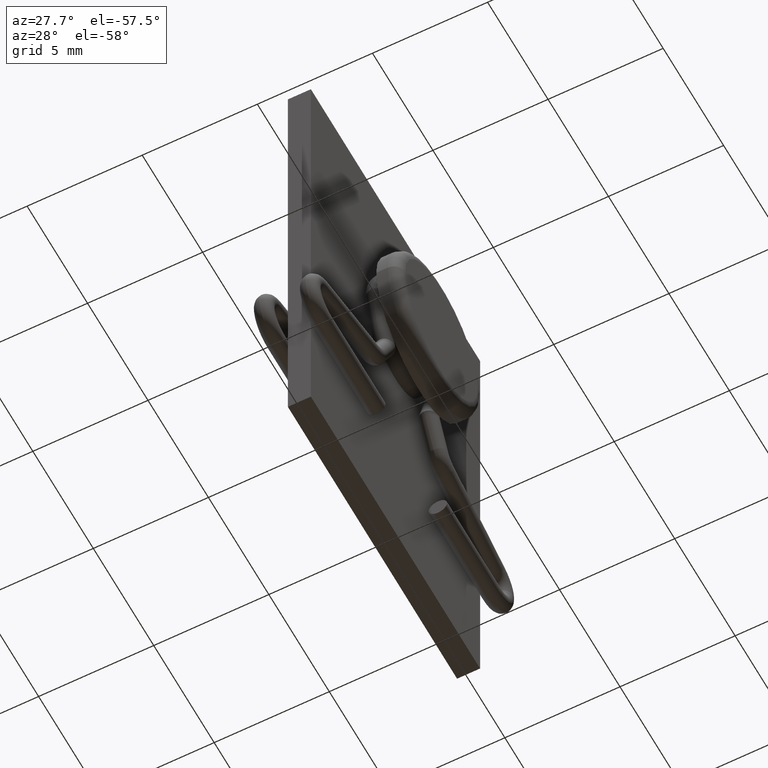
[diagram: clean part render]
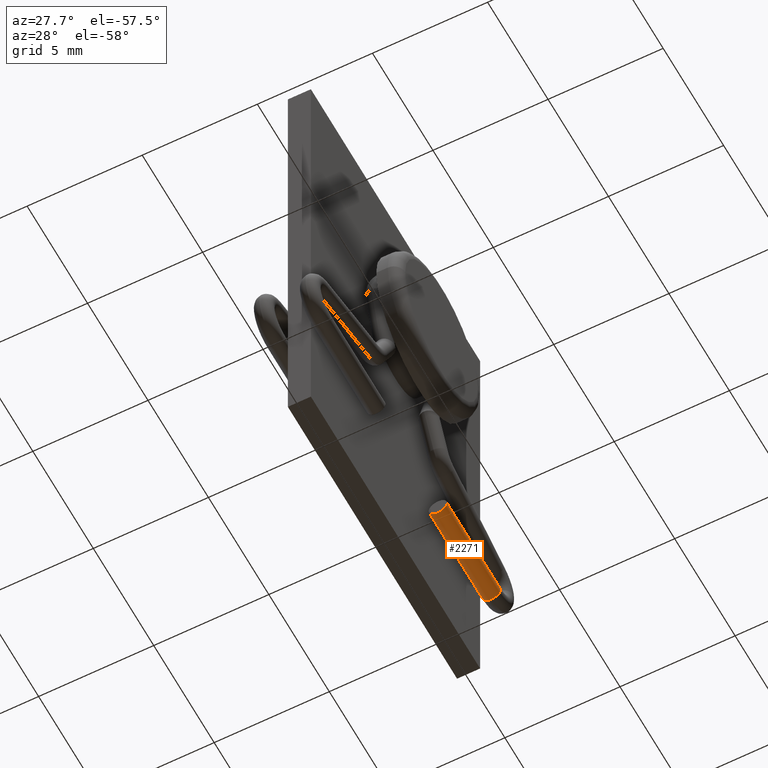
[diagram: same view with one face highlighted and labeled with its STEP entity id]
A machine part, auxiliary view. The second image highlights one B-rep face of the part: STEP entity #2271.
In plain terms, the highlighted cylindrical surface (edge-blend (fillet) strip) has radius 0.4 mm, axis along (-0, 1, -0).
Its self-contained STEP definition (entity closure, byte-faithful):
#32 = CARTESIAN_POINT ( 'NONE',  ( 0.9999999999999993339, 2.549999999999993161, 4.999999999999998224 ) ) ;
#67 = DIRECTION ( 'NONE',  ( -3.898255002195071413E-16, 1.000000000000000000, -1.949127501097535707E-16 ) ) ;
#184 = DIRECTION ( 'NONE',  ( 1.000000000000000000, 0.000000000000000000, 0.000000000000000000 ) ) ;
#298 = CARTESIAN_POINT ( 'NONE',  ( 0.9999999999999978906, 6.999999999999993783, 4.599999999999996092 ) ) ;
#309 = DIRECTION ( 'NONE',  ( -3.898255002195071413E-16, 1.000000000000000000, -1.949127501097535707E-16 ) ) ;
#321 = AXIS2_PLACEMENT_3D ( 'NONE', #32, #309, #2972 ) ;
#329 = CARTESIAN_POINT ( 'NONE',  ( 1.399999999999999245, 2.549999999999993161, 4.999999999999998224 ) ) ;
#340 = EDGE_LOOP ( 'NONE', ( #2700, #1874, #2440, #1589, #785 ) ) ;
#344 = DIRECTION ( 'NONE',  ( 4.616354607862584257E-16, -1.000000000000000000, 0.000000000000000000 ) ) ;
#408 = VERTEX_POINT ( 'NONE', #298 ) ;
#437 = CARTESIAN_POINT ( 'NONE',  ( 1.399999999999999245, 2.549999999999993161, 4.999999999999997335 ) ) ;
#644 = CARTESIAN_POINT ( 'NONE',  ( 0.9999999999999993339, 2.549999999999993161, 4.999999999999998224 ) ) ;
#785 = ORIENTED_EDGE ( 'NONE', *, *, #2127, .T. ) ;
#1116 = CIRCLE ( 'NONE', #1210, 0.3999999999999999667 ) ;
#1119 = VERTEX_POINT ( 'NONE', #1254 ) ;
#1168 = AXIS2_PLACEMENT_3D ( 'NONE', #644, #344, #2317 ) ;
#1173 = VERTEX_POINT ( 'NONE', #437 ) ;
#1198 = VECTOR ( 'NONE', #67, 1000.000000000000000 ) ;
#1210 = AXIS2_PLACEMENT_3D ( 'NONE', #2113, #1390, #184 ) ;
#1240 = LINE ( 'NONE', #329, #1850 ) ;
#1254 = CARTESIAN_POINT ( 'NONE',  ( 0.5999999999999994227, 2.549999999999993161, 4.999999999999997335 ) ) ;
#1390 = DIRECTION ( 'NONE',  ( 4.616354607862584257E-16, -1.000000000000000000, 0.000000000000000000 ) ) ;
#1504 = CARTESIAN_POINT ( 'NONE',  ( 1.399999999999997691, 6.999999999999993783, 4.999999999999997335 ) ) ;
#1508 = CYLINDRICAL_SURFACE ( 'NONE', #321, 0.3999999999999999667 ) ;
#1589 = ORIENTED_EDGE ( 'NONE', *, *, #2676, .T. ) ;
#1699 = AXIS2_PLACEMENT_3D ( 'NONE', #2842, #2875, #2367 ) ;
#1766 = LINE ( 'NONE', #2463, #1198 ) ;
#1850 = VECTOR ( 'NONE', #2207, 1000.000000000000000 ) ;
#1874 = ORIENTED_EDGE ( 'NONE', *, *, #2415, .F. ) ;
#1908 = CIRCLE ( 'NONE', #1699, 0.3999999999999999667 ) ;
#2113 = CARTESIAN_POINT ( 'NONE',  ( 0.9999999999999976685, 6.999999999999993783, 4.999999999999997335 ) ) ;
#2127 = EDGE_CURVE ( 'NONE', #408, #2840, #1908, .T. ) ;
#2133 = CARTESIAN_POINT ( 'NONE',  ( 0.5999999999999976463, 6.999999999999993783, 4.999999999999997335 ) ) ;
#2143 = VERTEX_POINT ( 'NONE', #2133 ) ;
#2207 = DIRECTION ( 'NONE',  ( -3.898255002195071413E-16, 1.000000000000000000, -1.949127501097535707E-16 ) ) ;
#2216 = EDGE_CURVE ( 'NONE', #1119, #2143, #1766, .T. ) ;
#2257 = EDGE_CURVE ( 'NONE', #1173, #2840, #1240, .T. ) ;
#2271 = ADVANCED_FACE ( 'NONE', ( #2733 ), #1508, .T. ) ;
#2317 = DIRECTION ( 'NONE',  ( 1.000000000000000000, 0.000000000000000000, 0.000000000000000000 ) ) ;
#2367 = DIRECTION ( 'NONE',  ( 1.000000000000000000, 0.000000000000000000, 0.000000000000000000 ) ) ;
#2377 = CIRCLE ( 'NONE', #1168, 0.3999999999999999667 ) ;
#2415 = EDGE_CURVE ( 'NONE', #1119, #1173, #2377, .T. ) ;
#2440 = ORIENTED_EDGE ( 'NONE', *, *, #2216, .T. ) ;
#2463 = CARTESIAN_POINT ( 'NONE',  ( 0.5999999999999994227, 2.549999999999993161, 4.999999999999998224 ) ) ;
#2676 = EDGE_CURVE ( 'NONE', #2143, #408, #1116, .T. ) ;
#2700 = ORIENTED_EDGE ( 'NONE', *, *, #2257, .F. ) ;
#2733 = FACE_OUTER_BOUND ( 'NONE', #340, .T. ) ;
#2840 = VERTEX_POINT ( 'NONE', #1504 ) ;
#2842 = CARTESIAN_POINT ( 'NONE',  ( 0.9999999999999976685, 6.999999999999993783, 4.999999999999997335 ) ) ;
#2875 = DIRECTION ( 'NONE',  ( 4.616354607862584257E-16, -1.000000000000000000, 0.000000000000000000 ) ) ;
#2972 = DIRECTION ( 'NONE',  ( -1.000000000000000000, 0.000000000000000000, 0.000000000000000000 ) ) ;